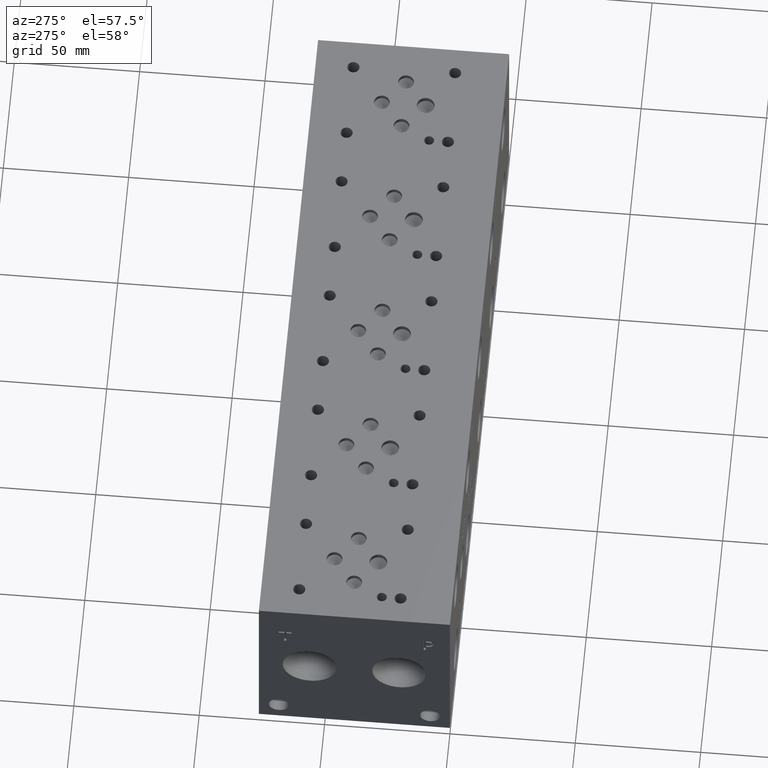
[diagram: clean part render]
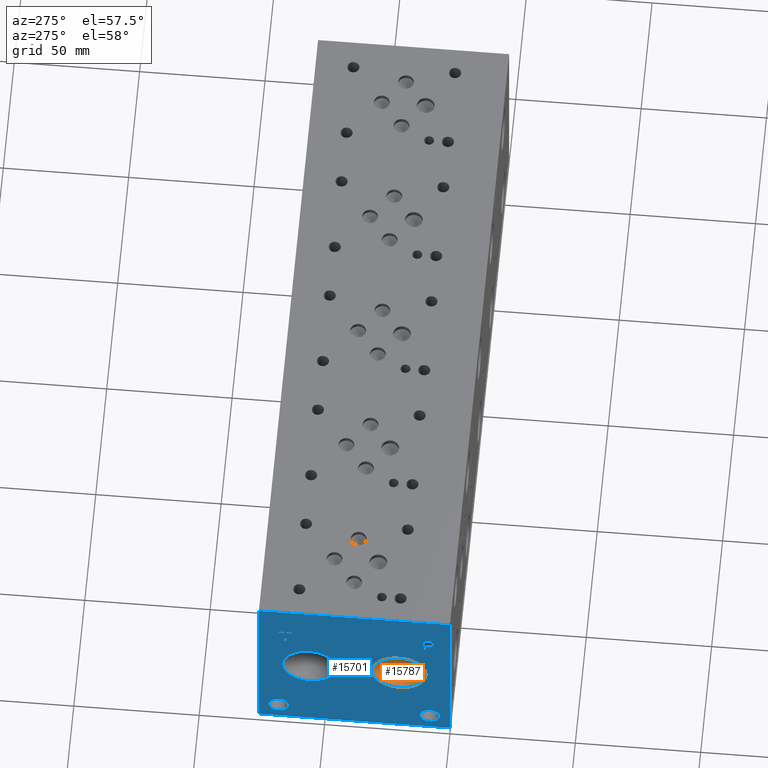
[diagram: same view with the hole feature highlighted: cylindrical wall and planar end face, labeled with their STEP entity ids]
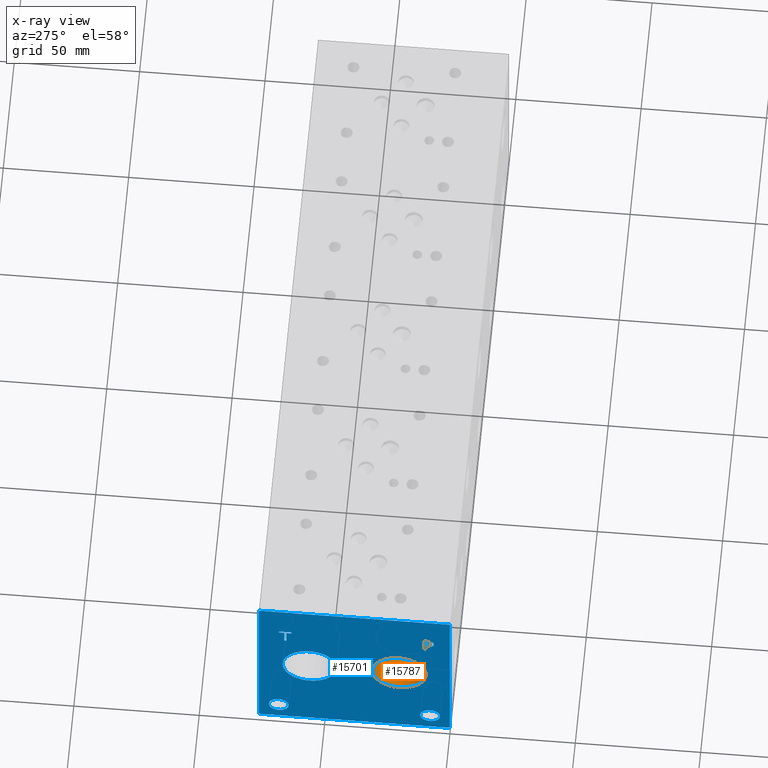
[diagram: x-ray of the same camera — body ghosted, the hole faces saturated]
A machine part, auxiliary view. The highlighted faces form one hole feature of diameter 21.59 mm: the cylindrical wall (entity #15787, orange) and its adjacent planar end face (entity #15701, blue) — they share a circular edge in the B-rep.
The next image is the same camera in x-ray (body ghosted, the hole faces saturated) — the bore reads through the body.
Wall:
#51=CYLINDRICAL_SURFACE('',#16552,10.795);
#221=CIRCLE('',#16362,10.795);
#222=CIRCLE('',#16363,10.795);
#323=CIRCLE('',#16549,10.795);
#324=CIRCLE('',#16550,10.795);
#1852=FACE_OUTER_BOUND('',#2769,.T.);
#2769=EDGE_LOOP('',(#13558,#13559,#13560,#13561,#13562,#13563));
#4259=LINE('',#26791,#5658);
#5658=VECTOR('',#19442,10.795);
#7299=VERTEX_POINT('',#26379);
#7300=VERTEX_POINT('',#26380);
#7435=VERTEX_POINT('',#26784);
#7436=VERTEX_POINT('',#26785);
#9376=EDGE_CURVE('',#7299,#7300,#221,.T.);
#9377=EDGE_CURVE('',#7300,#7299,#222,.T.);
#9560=EDGE_CURVE('',#7435,#7436,#323,.T.);
#9561=EDGE_CURVE('',#7436,#7435,#324,.T.);
#9563=EDGE_CURVE('',#7300,#7436,#4259,.T.);
#13558=ORIENTED_EDGE('',*,*,#9376,.F.);
#13559=ORIENTED_EDGE('',*,*,#9377,.F.);
#13560=ORIENTED_EDGE('',*,*,#9563,.T.);
#13561=ORIENTED_EDGE('',*,*,#9560,.F.);
#13562=ORIENTED_EDGE('',*,*,#9561,.F.);
#13563=ORIENTED_EDGE('',*,*,#9563,.F.);
#15787=ADVANCED_FACE('',(#1852),#51,.F.);
#16362=AXIS2_PLACEMENT_3D('',#26381,#18978,#18979);
#16363=AXIS2_PLACEMENT_3D('',#26382,#18980,#18981);
#16549=AXIS2_PLACEMENT_3D('',#26786,#19434,#19435);
#16550=AXIS2_PLACEMENT_3D('',#26787,#19436,#19437);
#16552=AXIS2_PLACEMENT_3D('',#26790,#19440,#19441);
#18978=DIRECTION('center_axis',(1.,0.,0.));
#18979=DIRECTION('ref_axis',(0.,1.,0.));
#18980=DIRECTION('center_axis',(1.,0.,0.));
#18981=DIRECTION('ref_axis',(0.,1.,0.));
#19434=DIRECTION('center_axis',(-1.,0.,0.));
#19435=DIRECTION('ref_axis',(0.,1.,0.));
#19436=DIRECTION('center_axis',(-1.,0.,0.));
#19437=DIRECTION('ref_axis',(0.,1.,0.));
#19440=DIRECTION('center_axis',(-1.,0.,0.));
#19441=DIRECTION('ref_axis',(0.,1.,0.));
#19442=DIRECTION('',(1.,0.,0.));
#26379=CARTESIAN_POINT('',(0.,31.0388,38.1));
#26380=CARTESIAN_POINT('',(0.,9.4488,38.1));
#26381=CARTESIAN_POINT('Origin',(0.,20.2438,38.1));
#26382=CARTESIAN_POINT('Origin',(0.,20.2438,38.1));
#26784=CARTESIAN_POINT('',(15.367,31.0388,38.1));
#26785=CARTESIAN_POINT('',(15.367,9.4488,38.1));
#26786=CARTESIAN_POINT('Origin',(15.367,20.2438,38.1));
#26787=CARTESIAN_POINT('Origin',(15.367,20.2438,38.1));
#26790=CARTESIAN_POINT('Origin',(7.6835,20.2438,38.1));
#26791=CARTESIAN_POINT('',(7.6835,9.4488,38.1));
End face:
#219=CIRCLE('',#16360,10.795);
#220=CIRCLE('',#16361,10.795);
#221=CIRCLE('',#16362,10.795);
#222=CIRCLE('',#16363,10.795);
#223=CIRCLE('',#16364,3.9624);
#224=CIRCLE('',#16365,3.9624);
#225=CIRCLE('',#16366,3.9624);
#226=CIRCLE('',#16367,3.9624);
#646=FACE_BOUND('',#2660,.T.);
#647=FACE_BOUND('',#2661,.T.);
#648=FACE_BOUND('',#2662,.T.);
#649=FACE_BOUND('',#2663,.T.);
#650=FACE_BOUND('',#2664,.T.);
#651=FACE_BOUND('',#2665,.T.);
#1120=PLANE('',#16359);
#1766=FACE_OUTER_BOUND('',#2659,.T.);
#2659=EDGE_LOOP('',(#13146,#13147,#13148,#13149));
#2660=EDGE_LOOP('',(#13150,#13151));
#2661=EDGE_LOOP('',(#13152,#13153));
#2662=EDGE_LOOP('',(#13154,#13155));
#2663=EDGE_LOOP('',(#13156,#13157));
#2664=EDGE_LOOP('',(#13158,#13159,#13160,#13161,#13162,#13163,#13164,#13165));
#2665=EDGE_LOOP('',(#13166,#13167,#13168,#13169,#13170,#13171,#13172,#13173,
#13174));
#3252=LINE('',#22584,#4651);
#4158=LINE('',#26305,#5557);
#4161=LINE('',#26311,#5560);
#4164=LINE('',#26317,#5563);
#4167=LINE('',#26323,#5566);
#4170=LINE('',#26329,#5569);
#4174=LINE('',#26371,#5573);
#4175=LINE('',#26373,#5574);
#4176=LINE('',#26374,#5575);
#4177=LINE('',#26393,#5576);
#4178=LINE('',#26395,#5577);
#4179=LINE('',#26397,#5578);
#4180=LINE('',#26399,#5579);
#4181=LINE('',#26401,#5580);
#4182=LINE('',#26403,#5581);
#4183=LINE('',#26405,#5582);
#4184=LINE('',#26406,#5583);
#4651=VECTOR('',#17353,10.);
#5557=VECTOR('',#18943,10.);
#5560=VECTOR('',#18948,10.);
#5563=VECTOR('',#18953,10.);
#5566=VECTOR('',#18958,10.);
#5569=VECTOR('',#18963,10.);
#5573=VECTOR('',#18971,10.);
#5574=VECTOR('',#18972,10.);
#5575=VECTOR('',#18973,10.);
#5576=VECTOR('',#18990,10.);
#5577=VECTOR('',#18991,10.);
#5578=VECTOR('',#18992,10.);
#5579=VECTOR('',#18993,10.);
#5580=VECTOR('',#18994,10.);
#5581=VECTOR('',#18995,10.);
#5582=VECTOR('',#18996,10.);
#5583=VECTOR('',#18997,10.);
#6183=B_SPLINE_CURVE_WITH_KNOTS('',2,(#26272,#26273,#26274,#26275),
 .UNSPECIFIED.,.F.,.F.,(3,1,3),(0.,1.,2.),.UNSPECIFIED.);
#6185=B_SPLINE_CURVE_WITH_KNOTS('',2,(#26293,#26294,#26295,#26296),
 .UNSPECIFIED.,.F.,.F.,(3,1,3),(0.,1.,2.),.UNSPECIFIED.);
#6187=B_SPLINE_CURVE_WITH_KNOTS('',2,(#26342,#26343,#26344,#26345),
 .UNSPECIFIED.,.F.,.F.,(3,1,3),(0.,1.,2.),.UNSPECIFIED.);
#6189=B_SPLINE_CURVE_WITH_KNOTS('',2,(#26360,#26361,#26362,#26363),
 .UNSPECIFIED.,.F.,.F.,(3,1,3),(0.,1.,2.),.UNSPECIFIED.);
#6503=VERTEX_POINT('',#22577);
#6506=VERTEX_POINT('',#22582);
#7277=VERTEX_POINT('',#26270);
#7278=VERTEX_POINT('',#26271);
#7281=VERTEX_POINT('',#26292);
#7283=VERTEX_POINT('',#26304);
#7285=VERTEX_POINT('',#26310);
#7287=VERTEX_POINT('',#26316);
#7289=VERTEX_POINT('',#26322);
#7291=VERTEX_POINT('',#26328);
#7293=VERTEX_POINT('',#26341);
#7295=VERTEX_POINT('',#26370);
#7296=VERTEX_POINT('',#26372);
#7297=VERTEX_POINT('',#26375);
#7298=VERTEX_POINT('',#26376);
#7299=VERTEX_POINT('',#26379);
#7300=VERTEX_POINT('',#26380);
#7301=VERTEX_POINT('',#26383);
#7302=VERTEX_POINT('',#26384);
#7303=VERTEX_POINT('',#26387);
#7304=VERTEX_POINT('',#26388);
#7305=VERTEX_POINT('',#26391);
#7306=VERTEX_POINT('',#26392);
#7307=VERTEX_POINT('',#26394);
#7308=VERTEX_POINT('',#26396);
#7309=VERTEX_POINT('',#26398);
#7310=VERTEX_POINT('',#26400);
#7311=VERTEX_POINT('',#26402);
#7312=VERTEX_POINT('',#26404);
#8203=EDGE_CURVE('',#6503,#6506,#3252,.T.);
#9344=EDGE_CURVE('',#7277,#7278,#6183,.T.);
#9348=EDGE_CURVE('',#7281,#7277,#6185,.T.);
#9351=EDGE_CURVE('',#7283,#7281,#4158,.T.);
#9354=EDGE_CURVE('',#7285,#7283,#4161,.T.);
#9357=EDGE_CURVE('',#7287,#7285,#4164,.T.);
#9360=EDGE_CURVE('',#7289,#7287,#4167,.T.);
#9363=EDGE_CURVE('',#7291,#7289,#4170,.T.);
#9366=EDGE_CURVE('',#7293,#7291,#6187,.T.);
#9369=EDGE_CURVE('',#7278,#7293,#6189,.T.);
#9371=EDGE_CURVE('',#7295,#6503,#4174,.T.);
#9372=EDGE_CURVE('',#7296,#6506,#4175,.T.);
#9373=EDGE_CURVE('',#7295,#7296,#4176,.T.);
#9374=EDGE_CURVE('',#7297,#7298,#219,.T.);
#9375=EDGE_CURVE('',#7298,#7297,#220,.T.);
#9376=EDGE_CURVE('',#7299,#7300,#221,.T.);
#9377=EDGE_CURVE('',#7300,#7299,#222,.T.);
#9378=EDGE_CURVE('',#7301,#7302,#223,.T.);
#9379=EDGE_CURVE('',#7302,#7301,#224,.T.);
#9380=EDGE_CURVE('',#7303,#7304,#225,.T.);
#9381=EDGE_CURVE('',#7304,#7303,#226,.T.);
#9382=EDGE_CURVE('',#7305,#7306,#4177,.T.);
#9383=EDGE_CURVE('',#7306,#7307,#4178,.T.);
#9384=EDGE_CURVE('',#7307,#7308,#4179,.T.);
#9385=EDGE_CURVE('',#7308,#7309,#4180,.T.);
#9386=EDGE_CURVE('',#7309,#7310,#4181,.T.);
#9387=EDGE_CURVE('',#7310,#7311,#4182,.T.);
#9388=EDGE_CURVE('',#7311,#7312,#4183,.T.);
#9389=EDGE_CURVE('',#7312,#7305,#4184,.T.);
#13146=ORIENTED_EDGE('',*,*,#9371,.T.);
#13147=ORIENTED_EDGE('',*,*,#8203,.T.);
#13148=ORIENTED_EDGE('',*,*,#9372,.F.);
#13149=ORIENTED_EDGE('',*,*,#9373,.F.);
#13150=ORIENTED_EDGE('',*,*,#9374,.T.);
#13151=ORIENTED_EDGE('',*,*,#9375,.T.);
#13152=ORIENTED_EDGE('',*,*,#9376,.T.);
#13153=ORIENTED_EDGE('',*,*,#9377,.T.);
#13154=ORIENTED_EDGE('',*,*,#9378,.T.);
#13155=ORIENTED_EDGE('',*,*,#9379,.T.);
#13156=ORIENTED_EDGE('',*,*,#9380,.T.);
#13157=ORIENTED_EDGE('',*,*,#9381,.T.);
#13158=ORIENTED_EDGE('',*,*,#9382,.T.);
#13159=ORIENTED_EDGE('',*,*,#9383,.T.);
#13160=ORIENTED_EDGE('',*,*,#9384,.T.);
#13161=ORIENTED_EDGE('',*,*,#9385,.T.);
#13162=ORIENTED_EDGE('',*,*,#9386,.T.);
#13163=ORIENTED_EDGE('',*,*,#9387,.T.);
#13164=ORIENTED_EDGE('',*,*,#9388,.T.);
#13165=ORIENTED_EDGE('',*,*,#9389,.T.);
#13166=ORIENTED_EDGE('',*,*,#9344,.T.);
#13167=ORIENTED_EDGE('',*,*,#9369,.T.);
#13168=ORIENTED_EDGE('',*,*,#9366,.T.);
#13169=ORIENTED_EDGE('',*,*,#9363,.T.);
#13170=ORIENTED_EDGE('',*,*,#9360,.T.);
#13171=ORIENTED_EDGE('',*,*,#9357,.T.);
#13172=ORIENTED_EDGE('',*,*,#9354,.T.);
#13173=ORIENTED_EDGE('',*,*,#9351,.T.);
#13174=ORIENTED_EDGE('',*,*,#9348,.T.);
#15701=ADVANCED_FACE('',(#1766,#646,#647,#648,#649,#650,#651),#1120,.T.);
#16359=AXIS2_PLACEMENT_3D('',#26369,#18969,#18970);
#16360=AXIS2_PLACEMENT_3D('',#26377,#18974,#18975);
#16361=AXIS2_PLACEMENT_3D('',#26378,#18976,#18977);
#16362=AXIS2_PLACEMENT_3D('',#26381,#18978,#18979);
#16363=AXIS2_PLACEMENT_3D('',#26382,#18980,#18981);
#16364=AXIS2_PLACEMENT_3D('',#26385,#18982,#18983);
#16365=AXIS2_PLACEMENT_3D('',#26386,#18984,#18985);
#16366=AXIS2_PLACEMENT_3D('',#26389,#18986,#18987);
#16367=AXIS2_PLACEMENT_3D('',#26390,#18988,#18989);
#17353=DIRECTION('',(0.,0.,1.));
#18943=DIRECTION('',(0.,-1.,-5.56775304226775E-15));
#18948=DIRECTION('',(0.,-3.14708893596576E-15,1.));
#18953=DIRECTION('',(0.,1.,0.));
#18958=DIRECTION('',(0.,2.81413604853751E-15,-1.));
#18963=DIRECTION('',(0.,1.,0.));
#18969=DIRECTION('center_axis',(-1.,0.,0.));
#18970=DIRECTION('ref_axis',(0.,-1.,0.));
#18971=DIRECTION('',(0.,-1.,0.));
#18972=DIRECTION('',(0.,-1.,0.));
#18973=DIRECTION('',(0.,0.,1.));
#18974=DIRECTION('center_axis',(1.,0.,0.));
#18975=DIRECTION('ref_axis',(0.,1.,0.));
#18976=DIRECTION('center_axis',(1.,0.,0.));
#18977=DIRECTION('ref_axis',(0.,1.,0.));
#18978=DIRECTION('center_axis',(1.,0.,0.));
#18979=DIRECTION('ref_axis',(0.,1.,0.));
#18980=DIRECTION('center_axis',(1.,0.,0.));
#18981=DIRECTION('ref_axis',(0.,1.,0.));
#18982=DIRECTION('center_axis',(1.,0.,0.));
#18983=DIRECTION('ref_axis',(0.,1.,0.));
#18984=DIRECTION('center_axis',(1.,0.,0.));
#18985=DIRECTION('ref_axis',(0.,1.,0.));
#18986=DIRECTION('center_axis',(1.,0.,0.));
#18987=DIRECTION('ref_axis',(0.,1.,0.));
#18988=DIRECTION('center_axis',(1.,0.,0.));
#18989=DIRECTION('ref_axis',(0.,1.,0.));
#18990=DIRECTION('',(0.,1.,0.));
#18991=DIRECTION('',(0.,-3.17280044688052E-15,1.));
#18992=DIRECTION('',(0.,1.,4.16909044227779E-15));
#18993=DIRECTION('',(0.,0.,1.));
#18994=DIRECTION('',(0.,-1.,-1.73992282570867E-15));
#18995=DIRECTION('',(0.,0.,-1.));
#18996=DIRECTION('',(0.,1.,0.));
#18997=DIRECTION('',(0.,3.17280044688052E-15,-1.));
#22577=CARTESIAN_POINT('',(0.,0.,0.));
#22582=CARTESIAN_POINT('',(0.,0.,76.2));
#22584=CARTESIAN_POINT('',(0.,0.,0.));
#26270=CARTESIAN_POINT('',(0.,7.21193279764059,62.3100181439707));
#26271=CARTESIAN_POINT('',(0.,6.455490345468,60.7919873726039));
#26272=CARTESIAN_POINT('Ctrl Pts',(0.,7.21193279764059,62.3100181439707));
#26273=CARTESIAN_POINT('Ctrl Pts',(0.,6.85686797315141,62.0681623939564));
#26274=CARTESIAN_POINT('Ctrl Pts',(0.,6.45549034546799,61.3220116758269));
#26275=CARTESIAN_POINT('Ctrl Pts',(0.,6.455490345468,60.7919873726039));
#26292=CARTESIAN_POINT('',(0.,8.87404784561167,62.7062499046326));
#26293=CARTESIAN_POINT('Ctrl Pts',(0.,8.87404784561167,62.7062499046326));
#26294=CARTESIAN_POINT('Ctrl Pts',(0.,8.30800247323762,62.7062499046326));
#26295=CARTESIAN_POINT('Ctrl Pts',(0.,7.51553895191394,62.5209986918556));
#26296=CARTESIAN_POINT('Ctrl Pts',(0.,7.21193279764059,62.3100181439707));
#26304=CARTESIAN_POINT('',(0.,10.4692666223022,62.7062499046326));
#26305=CARTESIAN_POINT('',(0.,43.3346333111509,62.7062499046328));
#26310=CARTESIAN_POINT('',(0.,10.4692666223022,56.35625));
#26311=CARTESIAN_POINT('',(0.,10.4692666223023,28.1781249999999));
#26316=CARTESIAN_POINT('',(0.,9.62534443076271,56.35625));
#26317=CARTESIAN_POINT('',(0.,42.9126722153814,56.35625));
#26322=CARTESIAN_POINT('',(0.,9.62534443076271,58.7233488299279));
#26323=CARTESIAN_POINT('',(0.,9.62534443076279,29.3616744149638));
#26328=CARTESIAN_POINT('',(0.,8.91006891476276,58.7233488299279));
#26329=CARTESIAN_POINT('',(0.,42.5550344573814,58.7233488299279));
#26341=CARTESIAN_POINT('',(0.,7.01124398379889,59.3820198086904));
#26342=CARTESIAN_POINT('Ctrl Pts',(0.,7.01124398379889,59.3820198086904));
#26343=CARTESIAN_POINT('Ctrl Pts',(0.,7.34057947318016,59.0578301863307));
#26344=CARTESIAN_POINT('Ctrl Pts',(0.,8.2308144679139,58.7233488299279));
#26345=CARTESIAN_POINT('Ctrl Pts',(0.,8.91006891476276,58.7233488299279));
#26360=CARTESIAN_POINT('Ctrl Pts',(0.,6.455490345468,60.7919873726039));
#26361=CARTESIAN_POINT('Ctrl Pts',(0.,6.455490345468,60.3803180108774));
#26362=CARTESIAN_POINT('Ctrl Pts',(0.,6.74880476569819,59.6393131597695));
#26363=CARTESIAN_POINT('Ctrl Pts',(0.,7.01124398379889,59.3820198086904));
#26369=CARTESIAN_POINT('Origin',(0.,76.2,0.));
#26370=CARTESIAN_POINT('',(0.,76.2,0.));
#26371=CARTESIAN_POINT('',(0.,76.2,0.));
#26372=CARTESIAN_POINT('',(0.,76.2,76.2));
#26373=CARTESIAN_POINT('',(0.,76.2,76.2));
#26374=CARTESIAN_POINT('',(0.,76.2,0.));
#26375=CARTESIAN_POINT('',(0.,66.7512,38.1));
#26376=CARTESIAN_POINT('',(0.,45.1612,38.1));
#26377=CARTESIAN_POINT('Origin',(0.,55.9562,38.1));
#26378=CARTESIAN_POINT('Origin',(0.,55.9562,38.1));
#26379=CARTESIAN_POINT('',(0.,31.0388,38.1));
#26380=CARTESIAN_POINT('',(0.,9.4488,38.1));
#26381=CARTESIAN_POINT('Origin',(0.,20.2438,38.1));
#26382=CARTESIAN_POINT('Origin',(0.,20.2438,38.1));
#26383=CARTESIAN_POINT('',(0.,72.2376,7.92480000000001));
#26384=CARTESIAN_POINT('',(0.,64.3128,7.92480000000001));
#26385=CARTESIAN_POINT('Origin',(0.,68.2752,7.92480000000001));
#26386=CARTESIAN_POINT('Origin',(0.,68.2752,7.92480000000001));
#26387=CARTESIAN_POINT('',(0.,11.8872,7.92480000000001));
#26388=CARTESIAN_POINT('',(0.,3.9624,7.92480000000001));
#26389=CARTESIAN_POINT('Origin',(0.,7.9248,7.92480000000001));
#26390=CARTESIAN_POINT('Origin',(0.,7.9248,7.92480000000001));
#26391=CARTESIAN_POINT('',(0.,65.293334728547,55.5625));
#26392=CARTESIAN_POINT('',(0.,66.1372569200865,55.5625));
#26393=CARTESIAN_POINT('',(0.,70.7466673642735,55.5625));
#26394=CARTESIAN_POINT('',(0.,66.1372569200865,61.1612033194815));
#26395=CARTESIAN_POINT('',(0.,66.1372569200866,27.78125));
#26396=CARTESIAN_POINT('',(0.,68.2676458670216,61.1612033194815));
#26397=CARTESIAN_POINT('',(0.,71.1686284600431,61.1612033194815));
#26398=CARTESIAN_POINT('',(0.,68.2676458670216,61.9124999046326));
#26399=CARTESIAN_POINT('',(0.,68.2676458670216,30.5806016597408));
#26400=CARTESIAN_POINT('',(0.,63.1629457816119,61.9124999046325));
#26401=CARTESIAN_POINT('',(0.,72.2338229335107,61.9124999046326));
#26402=CARTESIAN_POINT('',(0.,63.1629457816119,61.1612033194815));
#26403=CARTESIAN_POINT('',(0.,63.1629457816119,30.9562499523163));
#26404=CARTESIAN_POINT('',(0.,65.293334728547,61.1612033194815));
#26405=CARTESIAN_POINT('',(0.,69.681472890806,61.1612033194815));
#26406=CARTESIAN_POINT('',(0.,65.2933347285471,30.5806016597407));